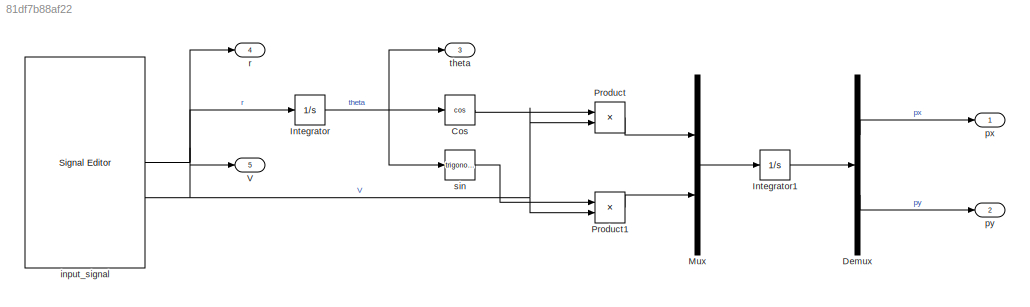
MODEL slx_81df7b88af22
KIND model
CONFIG AbsTol = auto
CONFIG EnableMultiTasking = off
CONFIG FixedStep = 0.02
CONFIG MaxStep = auto
CONFIG MinStep = auto
CONFIG RelTol = 1e-3
CONFIG SampleTimeConstraint = Unconstrained
CONFIG SolverName = FixedStepAuto
CONFIG StartTime = 0.0
CONFIG StopTime = end_time_vehicle
BLOCK [Trigonometry] Cos
  Operator = cos
BLOCK [Demux] Demux
  Outputs = 2
BLOCK [Integrator] Integrator
BLOCK [Integrator] Integrator1
BLOCK [Mux] Mux
  DisplayOption = bar
  Inputs = 2
BLOCK [Product] Product
BLOCK [Product] Product1
BLOCK [Outport] V
  Port = 5
BLOCK [Reference] input_signal  REF=SignalEditorBlockLib/Signal Editor
  SourceBlock = SignalEditorBlockLib/Signal Editor
  SourceType = SignalEditor
  UserDataPersistent = on
BLOCK [Outport] px
BLOCK [Outport] py
  Port = 2
BLOCK [Outport] r
  Port = 4
BLOCK [Trigonometry] sin
BLOCK [Outport] theta
  Port = 3
LINE Cos:1 -> Product:1
LINE Demux:1 -> px:1
LINE Demux:2 -> py:1
LINE Integrator1:1 -> Demux:1
NET Integrator:1 -> Cos:1, sin:1, theta:1
LINE Mux:1 -> Integrator1:1
LINE Product1:1 -> Mux:2
LINE Product:1 -> Mux:1
NET input_signal:1 -> Integrator:1, r:1
NET input_signal:2 -> Product1:2, Product:2, V:1
LINE sin:1 -> Product1:1
note: NET lines group one-source signal fan-out (src -> all destinations, sorted); 1:1 wires keep LINE
